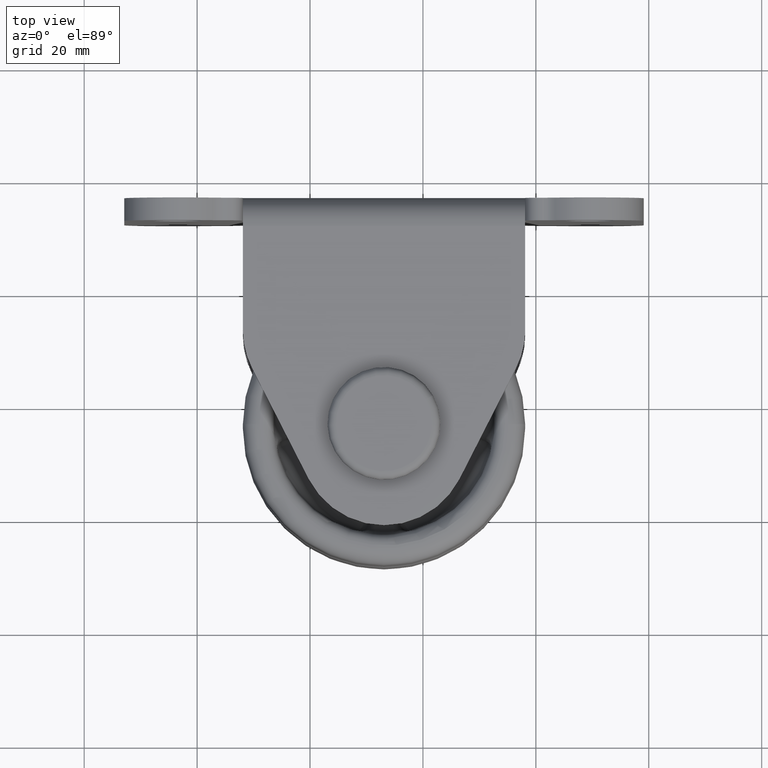
[diagram: clean part render]
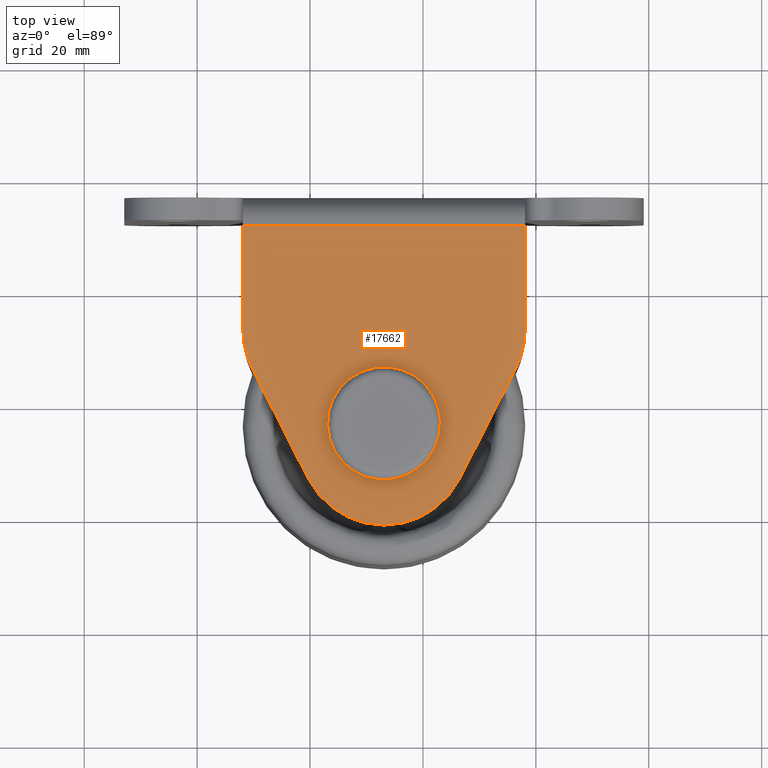
[diagram: same view with one face highlighted and labeled with its STEP entity id]
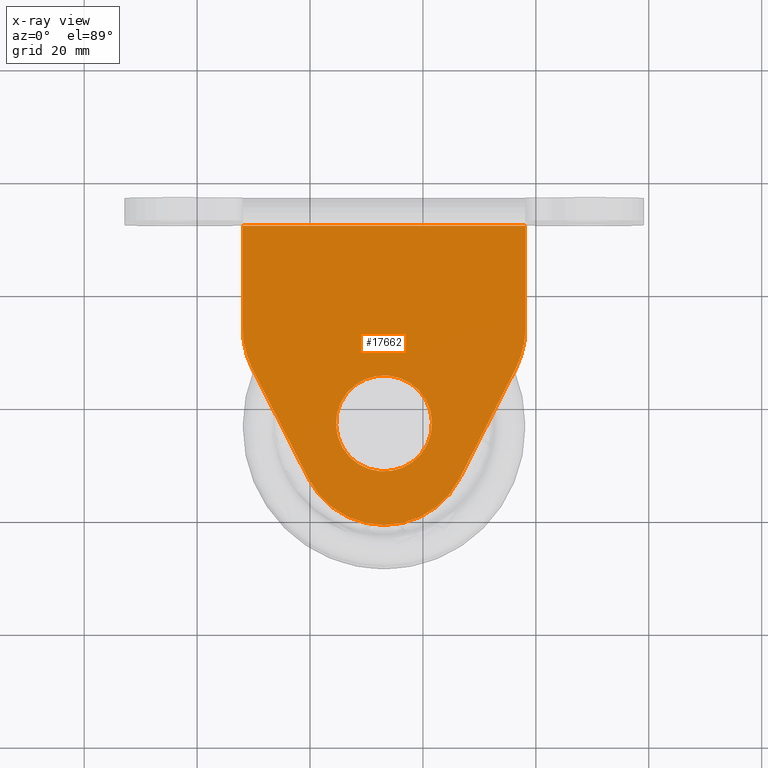
[diagram: x-ray of the same camera — body ghosted, the highlighted face saturated]
A machine part, top view. The second image highlights one B-rep face of the part: STEP entity #17662.
The next image is the same camera in x-ray: the body ghosted, the highlighted face saturated — about 0% of this face is hidden behind the body in this view.
In plain terms, the highlighted planar face has unit normal (0, 0, -1).
Its self-contained STEP definition (entity closure, byte-faithful):
#213 = CARTESIAN_POINT ( 'NONE',  ( -6.894579010514389594, -3.563915416284989757, 33.50000000000000000 ) ) ;
#338 = ORIENTED_EDGE ( 'NONE', *, *, #6517, .T. ) ;
#406 = AXIS2_PLACEMENT_3D ( 'NONE', #17066, #19068, #23239 ) ;
#678 = EDGE_CURVE ( 'NONE', #12438, #13658, #9984, .T. ) ;
#1037 = CARTESIAN_POINT ( 'NONE',  ( -31.89457901051440203, -21.56391541628500264, 33.50000000000000000 ) ) ;
#1353 = EDGE_CURVE ( 'NONE', #5200, #2213, #20178, .T. ) ;
#1833 = ORIENTED_EDGE ( 'NONE', *, *, #8883, .F. ) ;
#2118 = CARTESIAN_POINT ( 'NONE',  ( 18.10542098948559797, 31.43608458371500447, 33.50000000000000000 ) ) ;
#2174 = ORIENTED_EDGE ( 'NONE', *, *, #8107, .T. ) ;
#2213 = VERTEX_POINT ( 'NONE', #9160 ) ;
#3409 = ORIENTED_EDGE ( 'NONE', *, *, #23564, .T. ) ;
#4050 = CARTESIAN_POINT ( 'NONE',  ( 0.4752101500157630554, 0.6712006068402606163, 33.49999999999989342 ) ) ;
#4142 = VERTEX_POINT ( 'NONE', #16499 ) ;
#4197 = AXIS2_PLACEMENT_3D ( 'NONE', #8041, #24832, #12613 ) ;
#4416 = LINE ( 'NONE', #6042, #15707 ) ;
#4549 = DIRECTION ( 'NONE',  ( 0.000000000000000000, -1.000000000000000000, -3.700743415417188731E-15 ) ) ;
#5200 = VERTEX_POINT ( 'NONE', #22213 ) ;
#5712 = ORIENTED_EDGE ( 'NONE', *, *, #7503, .T. ) ;
#5850 = CARTESIAN_POINT ( 'NONE',  ( -31.89457901051440203, 31.43608458371500447, 33.50000000000000000 ) ) ;
#6014 = VECTOR ( 'NONE', #7861, 999.9999999999998863 ) ;
#6042 = CARTESIAN_POINT ( 'NONE',  ( -0.1925549510512354900, -26.43652334294394990, 33.50000000000000000 ) ) ;
#6055 = CARTESIAN_POINT ( 'NONE',  ( 18.10542098948559797, -21.56391541628500264, 33.50000000000000000 ) ) ;
#6517 = EDGE_CURVE ( 'NONE', #4142, #19029, #24447, .T. ) ;
#6869 = CARTESIAN_POINT ( 'NONE',  ( -30.25666671532204788, 6.225008901102270009, 33.50000000000000000 ) ) ;
#6921 = DIRECTION ( 'NONE',  ( 0.000000000000000000, -3.700743415417190309E-15, 1.000000000000000000 ) ) ;
#7011 = CIRCLE ( 'NONE', #22012, 15.00000000000000178 ) ;
#7503 = EDGE_CURVE ( 'NONE', #2213, #18264, #8720, .T. ) ;
#7621 = CIRCLE ( 'NONE', #4197, 15.00000000000000000 ) ;
#7714 = EDGE_CURVE ( 'NONE', #13658, #12438, #17305, .T. ) ;
#7861 = DIRECTION ( 'NONE',  ( 0.4543841359174639050, -0.8908058469871759089, -3.110231991288074659E-15 ) ) ;
#7881 = DIRECTION ( 'NONE',  ( -9.272579516860739299E-17, 3.438195621664304952E-15, -1.000000000000000000 ) ) ;
#8041 = CARTESIAN_POINT ( 'NONE',  ( -16.89457901051440203, 13.04077093986422042, 33.50000000000000000 ) ) ;
#8107 = EDGE_CURVE ( 'NONE', #10239, #4142, #7011, .T. ) ;
#8134 = CARTESIAN_POINT ( 'NONE',  ( -38.25023562216429696, 21.89615002959319767, 33.50000000000000000 ) ) ;
#8720 = CIRCLE ( 'NONE', #25027, 15.00000000000000000 ) ;
#8883 = EDGE_CURVE ( 'NONE', #26195, #26120, #15671, .T. ) ;
#9111 = DIRECTION ( 'NONE',  ( 0.000000000000000000, 1.000000000000000000, 3.491481338843135327E-15 ) ) ;
#9160 = CARTESIAN_POINT ( 'NONE',  ( -6.894579010514389594, -21.56391541628500264, 33.50000000000000000 ) ) ;
#9695 = CARTESIAN_POINT ( 'NONE',  ( 3.105420989485605077, 13.04077093986426128, 33.50000000000000000 ) ) ;
#9838 = DIRECTION ( 'NONE',  ( 0.000000000000000000, 1.000000000000000000, 3.700743415417187942E-15 ) ) ;
#9984 = CIRCLE ( 'NONE', #15547, 8.500000000000000000 ) ;
#10239 = VERTEX_POINT ( 'NONE', #14762 ) ;
#10724 = EDGE_LOOP ( 'NONE', ( #19691, #25280 ) ) ;
#11298 = DIRECTION ( 'NONE',  ( 0.000000000000000000, -1.000000000000000000, -3.700743415417188731E-15 ) ) ;
#11901 = LINE ( 'NONE', #8134, #6014 ) ;
#12241 = EDGE_CURVE ( 'NONE', #20629, #5200, #11901, .T. ) ;
#12438 = VERTEX_POINT ( 'NONE', #4050 ) ;
#12613 = DIRECTION ( 'NONE',  ( 0.000000000000000000, 1.000000000000000000, 3.700743415417188731E-15 ) ) ;
#12775 = ORIENTED_EDGE ( 'NONE', *, *, #23603, .F. ) ;
#12963 = CARTESIAN_POINT ( 'NONE',  ( -31.89457901051440203, 13.04077093986422042, 33.50000000000000000 ) ) ;
#13014 = CARTESIAN_POINT ( 'NONE',  ( -6.894579010514389594, -6.563915416284990201, 33.50000000000000000 ) ) ;
#13658 = VERTEX_POINT ( 'NONE', #26246 ) ;
#14246 = DIRECTION ( 'NONE',  ( 0.000000000000000000, 1.000000000000000000, 3.491481338843135327E-15 ) ) ;
#14302 = CARTESIAN_POINT ( 'NONE',  ( 6.467508694293240268, -13.37967745504692019, 33.50000000000000000 ) ) ;
#14532 = PLANE ( 'NONE',  #406 ) ;
#14762 = CARTESIAN_POINT ( 'NONE',  ( 16.46750869429325093, 6.225008901102309977, 33.50000000000000000 ) ) ;
#14917 = EDGE_LOOP ( 'NONE', ( #12775, #2174, #338, #15341, #1833, #3409, #18017, #17755, #5712 ) ) ;
#15341 = ORIENTED_EDGE ( 'NONE', *, *, #22765, .T. ) ;
#15547 = AXIS2_PLACEMENT_3D ( 'NONE', #213, #7881, #18619 ) ;
#15671 = LINE ( 'NONE', #1037, #16455 ) ;
#15707 = VECTOR ( 'NONE', #16775, 999.9999999999998863 ) ;
#16455 = VECTOR ( 'NONE', #9111, 1000.000000000000000 ) ;
#16499 = CARTESIAN_POINT ( 'NONE',  ( 18.10542098948559797, 13.04077093986426128, 33.50000000000000000 ) ) ;
#16775 = DIRECTION ( 'NONE',  ( -0.4543841359174639050, -0.8908058469871759089, -3.110231991288074659E-15 ) ) ;
#17066 = CARTESIAN_POINT ( 'NONE',  ( 18.10542098948559797, 32.43608458371499381, 33.50000000000000000 ) ) ;
#17305 = CIRCLE ( 'NONE', #22872, 8.500000000000000000 ) ;
#17662 = ADVANCED_FACE ( 'NONE', ( #21095, #21223 ), #14532, .F. ) ;
#17755 = ORIENTED_EDGE ( 'NONE', *, *, #1353, .T. ) ;
#18017 = ORIENTED_EDGE ( 'NONE', *, *, #12241, .T. ) ;
#18264 = VERTEX_POINT ( 'NONE', #14302 ) ;
#18619 = DIRECTION ( 'NONE',  ( 0.8670340188859001485, 0.4982489438970890694, 1.632680918566406596E-15 ) ) ;
#19029 = VERTEX_POINT ( 'NONE', #2118 ) ;
#19033 = CARTESIAN_POINT ( 'NONE',  ( -6.894579010514389594, -3.563915416284989757, 33.50000000000000000 ) ) ;
#19068 = DIRECTION ( 'NONE',  ( 0.000000000000000000, 3.491481338843135327E-15, -1.000000000000000000 ) ) ;
#19691 = ORIENTED_EDGE ( 'NONE', *, *, #7714, .T. ) ;
#20178 = CIRCLE ( 'NONE', #25758, 15.00000000000000000 ) ;
#20224 = LINE ( 'NONE', #5850, #24491 ) ;
#20569 = VECTOR ( 'NONE', #14246, 1000.000000000000000 ) ;
#20629 = VERTEX_POINT ( 'NONE', #6869 ) ;
#20938 = DIRECTION ( 'NONE',  ( 0.000000000000000000, -3.700743415417190309E-15, 1.000000000000000000 ) ) ;
#21095 = FACE_BOUND ( 'NONE', #10724, .T. ) ;
#21223 = FACE_OUTER_BOUND ( 'NONE', #14917, .T. ) ;
#22012 = AXIS2_PLACEMENT_3D ( 'NONE', #9695, #6921, #9838 ) ;
#22213 = CARTESIAN_POINT ( 'NONE',  ( -20.25666671532204788, -13.37967745504692019, 33.50000000000000000 ) ) ;
#22765 = EDGE_CURVE ( 'NONE', #19029, #26120, #20224, .T. ) ;
#22872 = AXIS2_PLACEMENT_3D ( 'NONE', #19033, #25362, #24834 ) ;
#23239 = DIRECTION ( 'NONE',  ( -1.000000000000000000, 0.000000000000000000, 0.000000000000000000 ) ) ;
#23564 = EDGE_CURVE ( 'NONE', #26195, #20629, #7621, .T. ) ;
#23603 = EDGE_CURVE ( 'NONE', #10239, #18264, #4416, .T. ) ;
#24447 = LINE ( 'NONE', #6055, #20569 ) ;
#24491 = VECTOR ( 'NONE', #26552, 1000.000000000000000 ) ;
#24832 = DIRECTION ( 'NONE',  ( 0.000000000000000000, -3.700743415417190309E-15, 1.000000000000000000 ) ) ;
#24834 = DIRECTION ( 'NONE',  ( 0.8670340188859001485, 0.4982489438970890694, 1.632680918566406596E-15 ) ) ;
#24930 = CARTESIAN_POINT ( 'NONE',  ( -31.89457901051440203, 31.43608458371500447, 33.50000000000000000 ) ) ;
#25027 = AXIS2_PLACEMENT_3D ( 'NONE', #25523, #26057, #11298 ) ;
#25280 = ORIENTED_EDGE ( 'NONE', *, *, #678, .T. ) ;
#25362 = DIRECTION ( 'NONE',  ( -9.272579516860739299E-17, 3.438195621664304952E-15, -1.000000000000000000 ) ) ;
#25523 = CARTESIAN_POINT ( 'NONE',  ( -6.894579010514389594, -6.563915416284990201, 33.50000000000000000 ) ) ;
#25758 = AXIS2_PLACEMENT_3D ( 'NONE', #13014, #20938, #4549 ) ;
#26057 = DIRECTION ( 'NONE',  ( 0.000000000000000000, -3.700743415417190309E-15, 1.000000000000000000 ) ) ;
#26120 = VERTEX_POINT ( 'NONE', #24930 ) ;
#26195 = VERTEX_POINT ( 'NONE', #12963 ) ;
#26246 = CARTESIAN_POINT ( 'NONE',  ( -14.26436817104453958, -7.799031439410240019, 33.50000000000000000 ) ) ;
#26552 = DIRECTION ( 'NONE',  ( -1.000000000000000000, 0.000000000000000000, 0.000000000000000000 ) ) ;